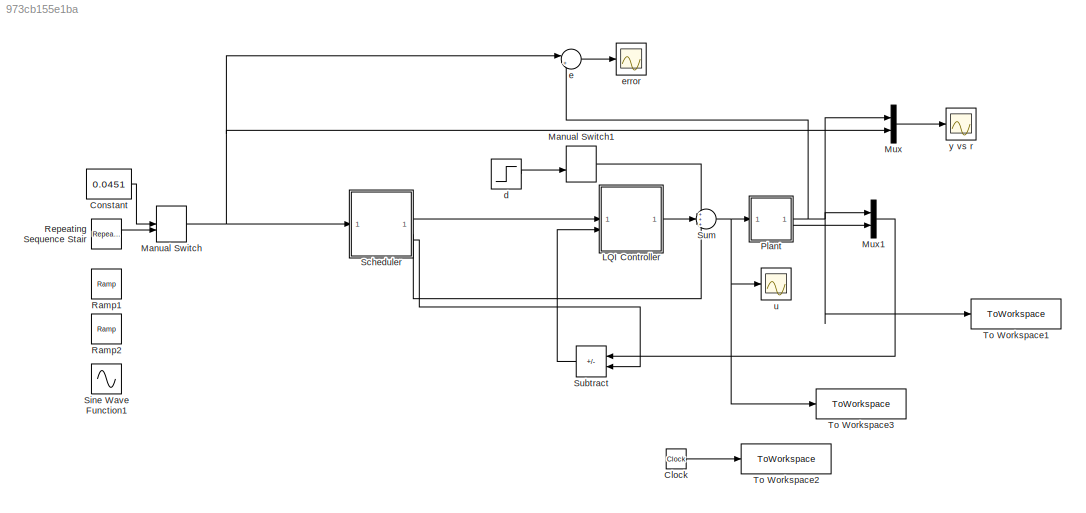
MODEL slx_973cb155e1ba
KIND model
CONFIG AbsTol = auto
CONFIG EnableMultiTasking = off
CONFIG FixedStep = auto
CONFIG MaxStep = auto
CONFIG MinStep = auto
CONFIG RelTol = 1e-10
CONFIG SampleTimeConstraint = Unconstrained
CONFIG SolverName = VariableStepAuto
CONFIG StartTime = 0.0
CONFIG StopTime = 20
BLOCK [Clock] Clock
BLOCK [Constant] Constant
  Value = 0.0451
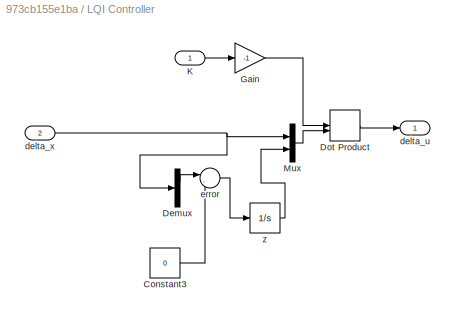
BLOCK [SubSystem] LQI Controller
BLOCK [Constant] LQI Controller/Constant3
  Value = 0
BLOCK [Demux] LQI Controller/Demux
  Outputs = 2
BLOCK [DotProduct] LQI Controller/Dot Product
  OutDataTypeStr = Inherit: Inherit via internal rule
BLOCK [Gain] LQI Controller/Gain
  Gain = -1
BLOCK [Inport] LQI Controller/K
BLOCK [Mux] LQI Controller/Mux
  DisplayOption = bar
  Inputs = 2
BLOCK [Outport] LQI Controller/delta_u
BLOCK [Inport] LQI Controller/delta_x
  Port = 2
BLOCK [Sum] LQI Controller/error
  Inputs = |-+
  NameLocation = top
BLOCK [Integrator] LQI Controller/z
  InitialCondition = 0.1
BLOCK [ManualSwitch] Manual Switch
BLOCK [ManualSwitch] Manual Switch1
BLOCK [Mux] Mux
  DisplayOption = bar
  Inputs = 2
BLOCK [Mux] Mux1
  DisplayOption = bar
  Inputs = 2
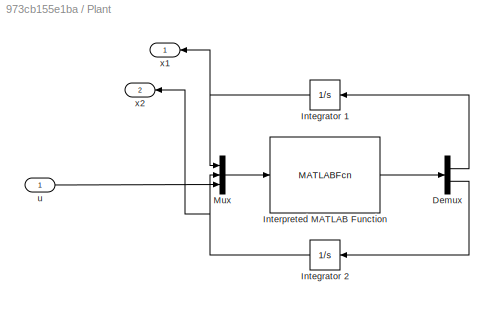
BLOCK [SubSystem] Plant
BLOCK [Demux] Plant/Demux
  Outputs = 2
BLOCK [Integrator] Plant/Integrator 1
  InitialCondition = x1_0
  NameLocation = top
BLOCK [Integrator] Plant/Integrator 2
  InitialCondition = x2_0
  NameLocation = top
BLOCK [MATLABFcn] Plant/Interpreted MATLAB Function
  MATLABFcn = SYS
  OutputDimensions = 2
BLOCK [Mux] Plant/Mux
  DisplayOption = bar
  Inputs = 3
BLOCK [Inport] Plant/u
BLOCK [Outport] Plant/x1
BLOCK [Outport] Plant/x2
  Port = 2
BLOCK [Reference] Ramp1  REF=simulink/Sources/Ramp
  SourceBlock = simulink/Sources/Ramp
  SourceType = Ramp
BLOCK [Reference] Ramp2  REF=simulink/Sources/Ramp
  SourceBlock = simulink/Sources/Ramp
  SourceType = Ramp
BLOCK [Reference] Repeating Sequence Stair  REF=simulink/Sources/Repeating
Sequence
Stair
  SourceBlock = simulink/Sources/Repeating\nSequence\nStair
  SourceType = Repeating Sequence Stair
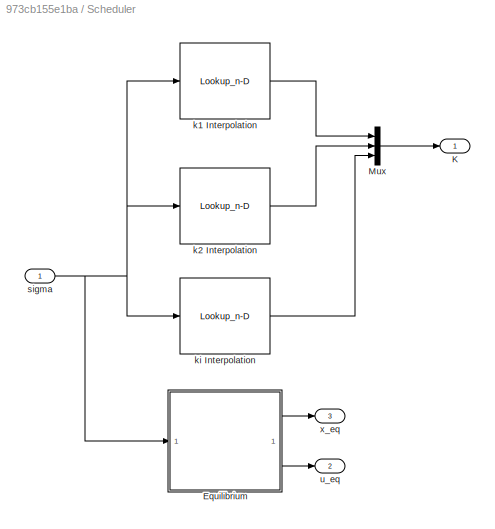
BLOCK [SubSystem] Scheduler
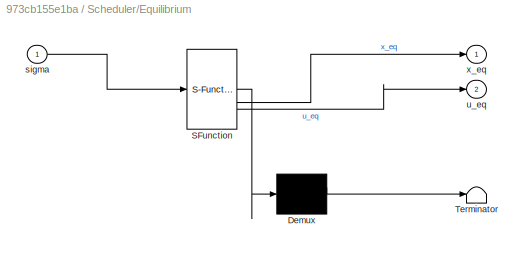
BLOCK [SubSystem] Scheduler/Equilibrium
  ErrorFcn = Stateflow.Translate.translate
  PermitHierarchicalResolution = ExplicitOnly
  SFBlockType = MATLAB Function
  TreatAsAtomicUnit = on
BLOCK [Demux] Scheduler/Equilibrium/ Demux 
  Outputs = 1
BLOCK [S-Function] Scheduler/Equilibrium/ SFunction 
  EnableBusSupport = on
  FunctionName = sf_sfun
  PortCounts = [1 3]
  SFcnIsStateOwnerBlock = off
  SFunctionDeploymentMode = off
  Tag = Stateflow S-Function 2
BLOCK [Terminator] Scheduler/Equilibrium/ Terminator 
BLOCK [Inport] Scheduler/Equilibrium/sigma
BLOCK [Outport] Scheduler/Equilibrium/u_eq
  Port = 2
BLOCK [Outport] Scheduler/Equilibrium/x_eq
BLOCK [Outport] Scheduler/K
BLOCK [Mux] Scheduler/Mux
  DisplayOption = bar
  Inputs = 3
BLOCK [Lookup_n-D] Scheduler/k1 Interpolation
  BreakpointsForDimension1 = sigma
  InputPortMap = u0
  InternalRulePriority = Speed
  NumberOfTableDimensions = 1
  OutDataTypeStr = double
  RndMeth = Simplest
  Table = K_sigma(1,:)
BLOCK [Lookup_n-D] Scheduler/k2 Interpolation
  BreakpointsForDimension1 = sigma
  InputPortMap = u0
  InternalRulePriority = Speed
  NumberOfTableDimensions = 1
  OutDataTypeStr = double
  RndMeth = Simplest
  Table = K_sigma(2,:)
BLOCK [Lookup_n-D] Scheduler/ki Interpolation
  BreakpointsForDimension1 = sigma
  InputPortMap = u0
  InternalRulePriority = Speed
  NumberOfTableDimensions = 1
  OutDataTypeStr = double
  RndMeth = Simplest
  Table = K_sigma(3,:)
BLOCK [Inport] Scheduler/sigma
BLOCK [Outport] Scheduler/u_eq
  Port = 2
BLOCK [Outport] Scheduler/x_eq
  NameLocation = top
  Port = 3
BLOCK [Sin] Sine Wave Function1
  Amplitude = 0.03
  Bias = 0.05
  Frequency = 0.05
  SampleTime = 0
BLOCK [Sum] Subtract
  IconShape = rectangular
  Inputs = +-
  NameLocation = top
BLOCK [Sum] Sum
  Inputs = +++
BLOCK [ToWorkspace] To Workspace1
  FixptAsFi = on
  MaxDataPoints = inf
  SampleTime = -1
  VariableName = y
BLOCK [ToWorkspace] To Workspace2
  FixptAsFi = on
  MaxDataPoints = inf
  SampleTime = -1
  VariableName = t
BLOCK [ToWorkspace] To Workspace3
  FixptAsFi = on
  MaxDataPoints = inf
  SampleTime = -1
  VariableName = u
BLOCK [Step] d
  After = -50
  SampleTime = 0
  Time = 30
BLOCK [Sum] e
  Inputs = |+-
  NameLocation = top
BLOCK [Scope] error
  Floating = off
  NumInputPorts = 1
  ScopeSpecificationString = Simulink.scopes.TimeScopeBlockCfg('CurrentConfiguration', extmgr.ConfigurationSet(extmgr.Configuration('Core','General UI',true),extmgr.Configuration('Core','Source UI',true),extmgr.Configuration('Sources','WiredSimulink',true,'DataLoggingVariableName','ScopeData2'),extmgr.Configuration('Visuals','Time Domain',true,'SerializedDisplays',{struct('MinYLimReal','-0.06322','MaxYLimReal','0.00822','YLab...<+1652ch>
BLOCK [Scope] u
  Floating = off
  NumInputPorts = 1
  ScopeSpecificationString = Simulink.scopes.TimeScopeBlockCfg('CurrentConfiguration', extmgr.ConfigurationSet(extmgr.Configuration('Core','General UI',true),extmgr.Configuration('Core','Source UI',true),extmgr.Configuration('Sources','WiredSimulink',true,'DataLoggingVariableName','ScopeData1'),extmgr.Configuration('Visuals','Time Domain',true,'SerializedDisplays',{struct('MinYLimReal','-65.09161','MaxYLimReal','95.84692','YL...<+1931ch>
BLOCK [Scope] y vs r
  Floating = off
  NumInputPorts = 1
  ScopeSpecificationString = Simulink.scopes.TimeScopeBlockCfg('CurrentConfiguration', extmgr.ConfigurationSet(extmgr.Configuration('Core','General UI',true),extmgr.Configuration('Core','Source UI',true),extmgr.Configuration('Sources','WiredSimulink',true),extmgr.Configuration('Visuals','Time Domain',true,'SerializedDisplays',{struct('MinYLimReal','-0.00359','MaxYLimReal','0.13244','YLabelReal','','MinYLimMag','0.00000','MaxY...<+1972ch>
LINE Clock:1 -> To Workspace2:1
LINE Constant:1 -> Manual Switch:1
LINE LQI Controller/Constant3:1 -> LQI Controller/error:2
LINE LQI Controller/Demux:1 -> LQI Controller/error:1
LINE LQI Controller/Dot Product:1 -> LQI Controller/delta_u:1
LINE LQI Controller/Gain:1 -> LQI Controller/Dot Product:1
LINE LQI Controller/K:1 -> LQI Controller/Gain:1
LINE LQI Controller/Mux:1 -> LQI Controller/Dot Product:2
NET LQI Controller/delta_x:1 -> LQI Controller/Demux:1, LQI Controller/Mux:1
LINE LQI Controller/error:1 -> LQI Controller/z:1
LINE LQI Controller/z:1 -> LQI Controller/Mux:2
LINE LQI Controller:1 -> Sum:2
LINE Manual Switch1:1 -> Sum:1
NET Manual Switch:1 -> Mux:2, Scheduler:1, e:1
LINE Mux1:1 -> Subtract:1
LINE Mux:1 -> y vs r:1
LINE Plant/Demux:1 -> Plant/Integrator 1:1
LINE Plant/Demux:2 -> Plant/Integrator 2:1
NET Plant/Integrator 1:1 -> Plant/Mux:1, Plant/x1:1
NET Plant/Integrator 2:1 -> Plant/Mux:2, Plant/x2:1
LINE Plant/Interpreted MATLAB Function:1 -> Plant/Demux:1
LINE Plant/Mux:1 -> Plant/Interpreted MATLAB Function:1
LINE Plant/u:1 -> Plant/Mux:3
NET Plant:1 -> Mux1:1, Mux:1, To Workspace1:1, e:2
LINE Plant:2 -> Mux1:2
LINE Repeating Sequence Stair:1 -> Manual Switch:2
LINE Scheduler/Equilibrium:1 -> Scheduler/x_eq:1
LINE Scheduler/Equilibrium:2 -> Scheduler/u_eq:1
LINE Scheduler/Mux:1 -> Scheduler/K:1
LINE Scheduler/k1 Interpolation:1 -> Scheduler/Mux:1
LINE Scheduler/k2 Interpolation:1 -> Scheduler/Mux:2
LINE Scheduler/ki Interpolation:1 -> Scheduler/Mux:3
NET Scheduler/sigma:1 -> Scheduler/Equilibrium:1, Scheduler/k1 Interpolation:1, Scheduler/k2 Interpolation:1, Scheduler/ki Interpolation:1
LINE Scheduler:1 -> LQI Controller:1
LINE Scheduler:2 -> Sum:3
LINE Scheduler:3 -> Subtract:2
LINE Subtract:1 -> LQI Controller:2
NET Sum:1 -> Plant:1, To Workspace3:1, u:1
LINE d:1 -> Manual Switch1:2
LINE e:1 -> error:1
note: NET lines group one-source signal fan-out (src -> all destinations, sorted); 1:1 wires keep LINE
CHART Scheduler/Equilibrium states=1 transitions=1
  STATE_LABEL 'eML_blk_kernel()'
  STATE_LABEL 'SCRIPT:\nfunction [x_eq,u_eq] = compute_equilibrium(sigma)\n    u_eq = -(399496308545527218176*sigma - 412936040625518808125)/(8736983277098762240000*sigma);\n    x_eq = [sigma; -(1360087087465889792*sigma - 1319284474841913125)/(90071992547409920000*sigma)];\nend'
CHART  states=0 transitions=0
